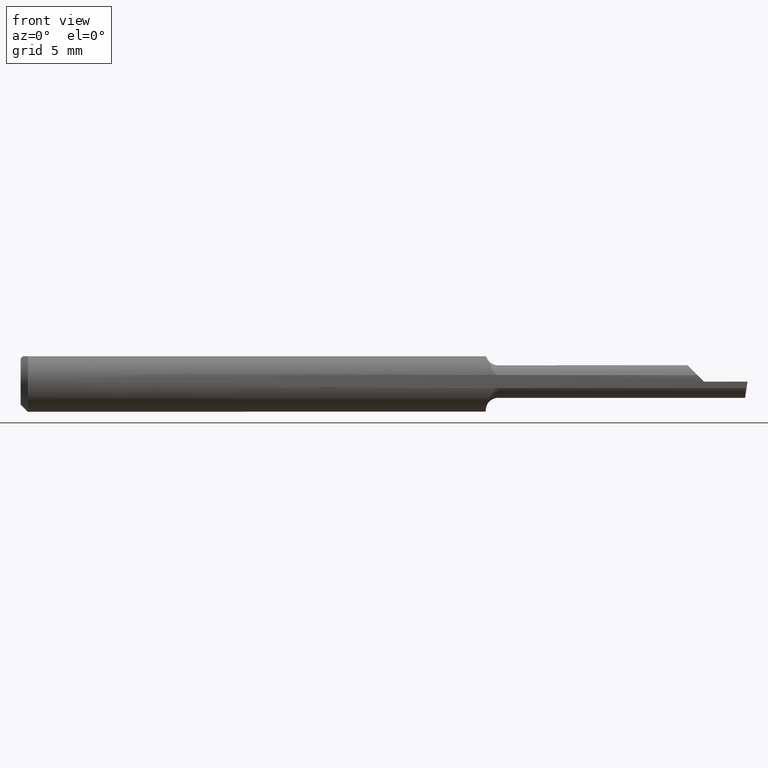
[diagram: clean part render]
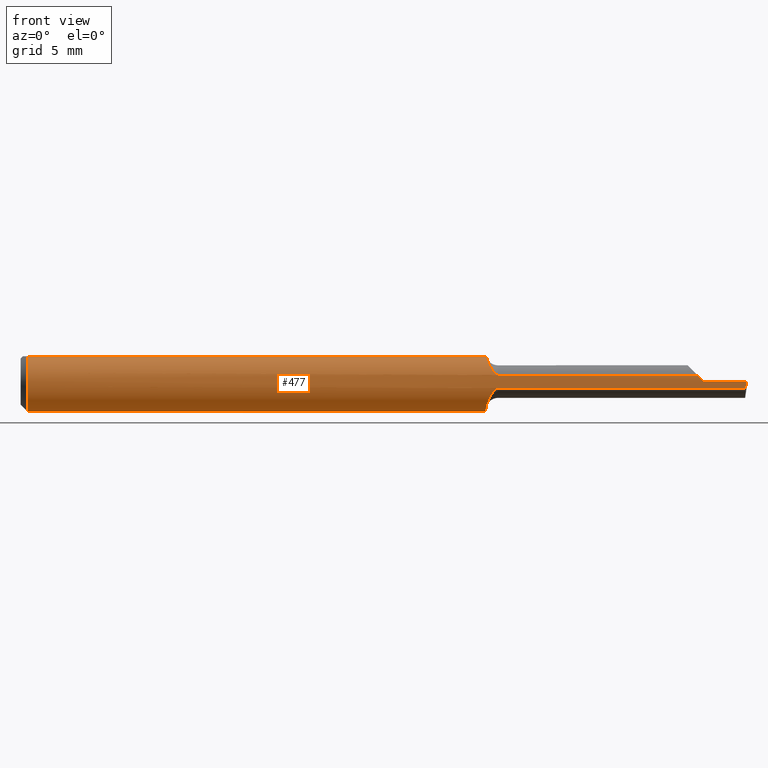
[diagram: same view with one face highlighted and labeled with its STEP entity id]
A machine part, front view. The second image highlights one B-rep face of the part: STEP entity #477.
In plain terms, the highlighted cylindrical surface (edge-blend (fillet) strip) has radius 1.5837 mm, axis along (-1, -0, -0).
Its self-contained STEP definition (entity closure, byte-faithful):
#2 = CARTESIAN_POINT ( 'NONE',  ( 0.9826699145969584048, -0.06082078945086091815, 0.01373977049058531900 ) ) ;
#6 = ORIENTED_EDGE ( 'NONE', *, *, #409, .F. ) ;
#10 = VECTOR ( 'NONE', #125, 39.37007874015748143 ) ;
#11 = EDGE_CURVE ( 'NONE', #474, #414, #535, .T. ) ;
#14 = ORIENTED_EDGE ( 'NONE', *, *, #515, .F. ) ;
#21 = AXIS2_PLACEMENT_3D ( 'NONE', #623, #573, #229 ) ;
#33 = CARTESIAN_POINT ( 'NONE',  ( 0.01500000000000000465, 0.0000000000000000000, 0.0000000000000000000 ) ) ;
#47 = CARTESIAN_POINT ( 'NONE',  ( 0.9600000000000001865, -0.02246166666666678594, -0.05816352835373341662 ) ) ;
#52 = CIRCLE ( 'NONE', #61, 0.06235000000000000264 ) ;
#61 = AXIS2_PLACEMENT_3D ( 'NONE', #340, #569, #232 ) ;
#65 = ORIENTED_EDGE ( 'NONE', *, *, #622, .F. ) ;
#71 = ORIENTED_EDGE ( 'NONE', *, *, #11, .F. ) ;
#75 = CARTESIAN_POINT ( 'NONE',  ( 0.0000000000000000000, 0.03386738844375223462, 0.05234999999999997988 ) ) ;
#76 =( BOUNDED_CURVE ( )  B_SPLINE_CURVE ( 3, ( #562, #464, #405, #182 ),
 .UNSPECIFIED., .F., .F. ) 
 B_SPLINE_CURVE_WITH_KNOTS ( ( 4, 4 ),
 ( 4.712388980384689674, 4.926973479604665584 ),
 .UNSPECIFIED. ) 
 CURVE ( )  GEOMETRIC_REPRESENTATION_ITEM ( )  RATIONAL_B_SPLINE_CURVE ( ( 1.000000000000000000, 0.9961664706887894960, 0.9961664706887894960, 1.000000000000000000 ) ) 
 REPRESENTATION_ITEM ( '' )  );
#78 = CARTESIAN_POINT ( 'NONE',  ( 1.497957498117606479, -0.06235000000000001652, 2.590631728435611737E-19 ) ) ;
#88 = CARTESIAN_POINT ( 'NONE',  ( 1.205000000000000071, -0.06092000000000005744, 0.01327690099383115746 ) ) ;
#102 = CYLINDRICAL_SURFACE ( 'NONE', #21, 0.06235000000000000264 ) ;
#105 = DIRECTION ( 'NONE',  ( -1.000000000000000000, -0.0000000000000000000, -0.0000000000000000000 ) ) ;
#106 = CARTESIAN_POINT ( 'NONE',  ( 0.9623556892620803715, -0.04203237437577739960, -0.04640179157007803812 ) ) ;
#107 = ORIENTED_EDGE ( 'NONE', *, *, #460, .T. ) ;
#111 = CARTESIAN_POINT ( 'NONE',  ( 0.9744486691799308931, -0.05829317251375062264, -0.02226264029831841185 ) ) ;
#124 = ORIENTED_EDGE ( 'NONE', *, *, #168, .F. ) ;
#125 = DIRECTION ( 'NONE',  ( 1.000000000000000000, 0.0000000000000000000, 0.0000000000000000000 ) ) ;
#128 = DIRECTION ( 'NONE',  ( -1.000000000000000000, -0.0000000000000000000, -0.0000000000000000000 ) ) ;
#133 = B_SPLINE_CURVE_WITH_KNOTS ( 'NONE', 3,
 ( #366, #438, #600, #259, #439, #441, #444, #408, #413, #416, #369, #2, #311, #400 ),
 .UNSPECIFIED., .F., .F.,
 ( 4, 2, 2, 2, 2, 2, 4 ),
 ( 3.657393739027581265E-07, 0.0003570510026825786539, 0.0007137362659912544925, 0.001070421529299930060, 0.001248764160954267790, 0.001337935476781436980, 0.001427106792608605736 ),
 .UNSPECIFIED. ) ;
#146 =( BOUNDED_CURVE ( )  B_SPLINE_CURVE ( 3, ( #174, #296, #399, #78 ),
 .UNSPECIFIED., .F., .T. ) 
 B_SPLINE_CURVE_WITH_KNOTS ( ( 4, 4 ),
 ( 1.146162383294266007, 1.360746882514242806 ),
 .UNSPECIFIED. ) 
 CURVE ( )  GEOMETRIC_REPRESENTATION_ITEM ( )  RATIONAL_B_SPLINE_CURVE ( ( 1.000000000000000000, 0.9961664706887894960, 0.9961664706887894960, 1.000000000000000000 ) ) 
 REPRESENTATION_ITEM ( '' )  );
#153 = CARTESIAN_POINT ( 'NONE',  ( 0.9788394046414949923, -0.06006884725234334921, -0.01674793665629171688 ) ) ;
#167 = VECTOR ( 'NONE', #105, 39.37007874015748143 ) ;
#168 = EDGE_CURVE ( 'NONE', #412, #601, #324, .T. ) ;
#174 = CARTESIAN_POINT ( 'NONE',  ( 1.496364186706980792, -0.06092000000000005744, -0.01327690099383115746 ) ) ;
#182 = CARTESIAN_POINT ( 'NONE',  ( 1.396723099006168756, -0.06092000000000005744, 0.01327690099383110368 ) ) ;
#189 = CARTESIAN_POINT ( 'NONE',  ( 0.9760504801086954396, -0.05911543623058087421, -0.01994584841871079733 ) ) ;
#194 = CARTESIAN_POINT ( 'NONE',  ( 0.9604591950614119744, -0.03294655339399241850, -0.05323881456264100559 ) ) ;
#217 = CARTESIAN_POINT ( 'NONE',  ( 0.9821601379188166225, -0.06077026469959424110, -0.01397522694752828185 ) ) ;
#218 = ORIENTED_EDGE ( 'NONE', *, *, #520, .T. ) ;
#221 = CARTESIAN_POINT ( 'NONE',  ( 0.9798286866658773020, -0.06034170405075480609, -0.01572293840682431956 ) ) ;
#223 = EDGE_CURVE ( 'NONE', #381, #380, #320, .T. ) ;
#226 = CARTESIAN_POINT ( 'NONE',  ( 0.9850000000000000977, -0.06092000000000009907, -0.01327690099383098052 ) ) ;
#229 = DIRECTION ( 'NONE',  ( 0.0000000000000000000, 0.0000000000000000000, 1.000000000000000000 ) ) ;
#230 = CARTESIAN_POINT ( 'NONE',  ( 0.9600000000000001865, -0.02246166666666678594, -0.05816352835373341662 ) ) ;
#232 = DIRECTION ( 'NONE',  ( 0.0000000000000000000, 1.000000000000000000, 0.0000000000000000000 ) ) ;
#235 = EDGE_CURVE ( 'NONE', #342, #412, #133, .T. ) ;
#241 = DIRECTION ( 'NONE',  ( 0.0000000000000000000, 0.0000000000000000000, 1.000000000000000000 ) ) ;
#246 = VERTEX_POINT ( 'NONE', #307 ) ;
#252 = CARTESIAN_POINT ( 'NONE',  ( 0.0000000000000000000, -0.03386738844375222768, 0.05234999999999997988 ) ) ;
#259 = CARTESIAN_POINT ( 'NONE',  ( 0.9646639545706103824, -0.04772651244230446260, 0.04037711979630429632 ) ) ;
#282 = CARTESIAN_POINT ( 'NONE',  ( 0.01500000000000185213, -0.03386738844380016850, 0.05235000000000000070 ) ) ;
#288 = CIRCLE ( 'NONE', #302, 0.06235000000000000264 ) ;
#296 = CARTESIAN_POINT ( 'NONE',  ( 1.496875516891821967, -0.06187149898566947359, -0.008911023878839218967 ) ) ;
#299 = CARTESIAN_POINT ( 'NONE',  ( 0.9850000000000000977, -0.06092000000000009907, -0.01327690099383098052 ) ) ;
#302 = AXIS2_PLACEMENT_3D ( 'NONE', #375, #371, #361 ) ;
#307 = CARTESIAN_POINT ( 'NONE',  ( 0.01500000000000000465, 0.03386738844375223462, 0.05234999999999997988 ) ) ;
#311 = CARTESIAN_POINT ( 'NONE',  ( 0.9838008948468816017, -0.06092000000060113218, 0.01327690099107449277 ) ) ;
#319 = ORIENTED_EDGE ( 'NONE', *, *, #486, .T. ) ;
#320 = LINE ( 'NONE', #360, #167 ) ;
#324 = LINE ( 'NONE', #88, #582 ) ;
#327 = VECTOR ( 'NONE', #479, 39.37007874015748143 ) ;
#329 = EDGE_CURVE ( 'NONE', #342, #404, #443, .T. ) ;
#338 = FACE_OUTER_BOUND ( 'NONE', #503, .T. ) ;
#340 = CARTESIAN_POINT ( 'NONE',  ( 0.9600000000000001865, 0.0000000000000000000, 0.0000000000000000000 ) ) ;
#342 = VERTEX_POINT ( 'NONE', #632 ) ;
#343 = CARTESIAN_POINT ( 'NONE',  ( 0.01500000000000000465, 0.0000000000000000000, -0.06235000000000000264 ) ) ;
#348 = LINE ( 'NONE', #75, #10 ) ;
#349 = CARTESIAN_POINT ( 'NONE',  ( 0.9700645789173278910, -0.05535262368619134343, -0.02912723828542086030 ) ) ;
#360 = CARTESIAN_POINT ( 'NONE',  ( 2.249639673992780117E-32, -0.06234999999999999570, 1.836970198721026976E-16 ) ) ;
#361 = DIRECTION ( 'NONE',  ( 0.0000000000000000000, 0.0000000000000000000, 1.000000000000000000 ) ) ;
#366 = CARTESIAN_POINT ( 'NONE',  ( 0.9607701187518842278, -0.03386738844373782947, 0.05235000000000000070 ) ) ;
#369 = CARTESIAN_POINT ( 'NONE',  ( 0.9806804763874463760, -0.06051938329563268104, 0.01501179429902396202 ) ) ;
#371 = DIRECTION ( 'NONE',  ( -1.000000000000000000, -0.0000000000000000000, -0.0000000000000000000 ) ) ;
#375 = CARTESIAN_POINT ( 'NONE',  ( 0.01500000000000000465, 0.0000000000000000000, 0.0000000000000000000 ) ) ;
#380 = VERTEX_POINT ( 'NONE', #579 ) ;
#381 = VERTEX_POINT ( 'NONE', #456 ) ;
#382 = CARTESIAN_POINT ( 'NONE',  ( 0.9850000000000000977, -0.06092000000000009213, 0.01327690099383100134 ) ) ;
#399 = CARTESIAN_POINT ( 'NONE',  ( 1.497408664532471789, -0.06235000000000000958, -0.004468359128689263979 ) ) ;
#400 = CARTESIAN_POINT ( 'NONE',  ( 0.9850000000000000977, -0.06092000000000009213, 0.01327690099383100134 ) ) ;
#404 = VERTEX_POINT ( 'NONE', #282 ) ;
#405 = CARTESIAN_POINT ( 'NONE',  ( 1.401088976121160901, -0.06187149898566947359, 0.008911023878839133966 ) ) ;
#406 = CARTESIAN_POINT ( 'NONE',  ( 0.9676519216434287252, -0.05268295501176721574, -0.03378546887498616591 ) ) ;
#408 = CARTESIAN_POINT ( 'NONE',  ( 0.9759830730812821820, -0.05904190537839698605, 0.02013745427411963926 ) ) ;
#409 = EDGE_CURVE ( 'NONE', #527, #404, #565, .T. ) ;
#412 = VERTEX_POINT ( 'NONE', #382 ) ;
#413 = CARTESIAN_POINT ( 'NONE',  ( 0.9773685403041281194, -0.05962881332384156047, 0.01830066387367073819 ) ) ;
#414 = VERTEX_POINT ( 'NONE', #226 ) ;
#416 = CARTESIAN_POINT ( 'NONE',  ( 0.9798073192436241863, -0.06032049651225029896, 0.01580211994234494849 ) ) ;
#424 = VERTEX_POINT ( 'NONE', #230 ) ;
#438 = CARTESIAN_POINT ( 'NONE',  ( 0.9613448335523233634, -0.03782458604559964244, 0.04978992457821582868 ) ) ;
#439 = CARTESIAN_POINT ( 'NONE',  ( 0.9662216145595606820, -0.05050373301684461802, 0.03681593035639607603 ) ) ;
#441 = CARTESIAN_POINT ( 'NONE',  ( 0.9699328214255320546, -0.05508260153816097598, 0.02952874505345451719 ) ) ;
#443 = LINE ( 'NONE', #252, #327 ) ;
#444 = CARTESIAN_POINT ( 'NONE',  ( 0.9721022567388295510, -0.05694092632992447250, 0.02571027090688607700 ) ) ;
#452 = CARTESIAN_POINT ( 'NONE',  ( 0.9599999999999998535, -0.02789725500421543977, -0.05606440581369922377 ) ) ;
#456 = CARTESIAN_POINT ( 'NONE',  ( 1.497957498117606479, -0.06235000000000001652, 2.590631728435611737E-19 ) ) ;
#460 = EDGE_CURVE ( 'NONE', #246, #540, #348, .T. ) ;
#464 = CARTESIAN_POINT ( 'NONE',  ( 1.405531640871310994, -0.06235000000000000958, 0.004468359128689195457 ) ) ;
#474 = VERTEX_POINT ( 'NONE', #558 ) ;
#477 = ADVANCED_FACE ( 'NONE', ( #338 ), #102, .T. ) ;
#479 = DIRECTION ( 'NONE',  ( -1.000000000000000000, -0.0000000000000000000, -0.0000000000000000000 ) ) ;
#480 = ORIENTED_EDGE ( 'NONE', *, *, #638, .F. ) ;
#485 = CARTESIAN_POINT ( 'NONE',  ( 0.9638064866373902140, -0.04605636197897009648, -0.04237644601823780527 ) ) ;
#486 = EDGE_CURVE ( 'NONE', #474, #381, #146, .T. ) ;
#494 = AXIS2_PLACEMENT_3D ( 'NONE', #33, #128, #241 ) ;
#498 = VECTOR ( 'NONE', #514, 39.37007874015748143 ) ;
#503 = EDGE_LOOP ( 'NONE', ( #71, #319, #510, #218, #124, #561, #541, #6, #480, #107, #14, #65 ) ) ;
#505 = CARTESIAN_POINT ( 'NONE',  ( 0.9600000000000001865, 0.03386738844375224156, 0.05235000000000000070 ) ) ;
#510 = ORIENTED_EDGE ( 'NONE', *, *, #223, .T. ) ;
#514 = DIRECTION ( 'NONE',  ( -1.000000000000000000, 2.845674993400274571E-18, -0.0000000000000000000 ) ) ;
#515 = EDGE_CURVE ( 'NONE', #424, #540, #52, .T. ) ;
#518 = CARTESIAN_POINT ( 'NONE',  ( 1.205000000000000071, -0.06092000000000005744, -0.01327690099383115746 ) ) ;
#520 = EDGE_CURVE ( 'NONE', #380, #601, #76, .T. ) ;
#527 = VERTEX_POINT ( 'NONE', #343 ) ;
#535 = LINE ( 'NONE', #518, #498 ) ;
#540 = VERTEX_POINT ( 'NONE', #505 ) ;
#541 = ORIENTED_EDGE ( 'NONE', *, *, #329, .T. ) ;
#555 = CARTESIAN_POINT ( 'NONE',  ( 0.9835150313864867710, -0.06092000000000008519, -0.01327690099383098919 ) ) ;
#558 = CARTESIAN_POINT ( 'NONE',  ( 1.496364186706980792, -0.06092000000000005744, -0.01327690099383115746 ) ) ;
#561 = ORIENTED_EDGE ( 'NONE', *, *, #235, .F. ) ;
#562 = CARTESIAN_POINT ( 'NONE',  ( 1.409999999999999920, -0.06235000000000005121, 1.102182119232617911E-17 ) ) ;
#565 = CIRCLE ( 'NONE', #494, 0.06235000000000000264 ) ;
#569 = DIRECTION ( 'NONE',  ( 1.000000000000000000, -2.845674993400274571E-18, 0.0000000000000000000 ) ) ;
#573 = DIRECTION ( 'NONE',  ( -1.000000000000000000, -0.0000000000000000000, -0.0000000000000000000 ) ) ;
#579 = CARTESIAN_POINT ( 'NONE',  ( 1.409999999999999920, -0.06235000000000005121, 1.102182119232617911E-17 ) ) ;
#582 = VECTOR ( 'NONE', #592, 39.37007874015748143 ) ;
#592 = DIRECTION ( 'NONE',  ( 1.000000000000000000, -2.845674993400274571E-18, 0.0000000000000000000 ) ) ;
#600 = CARTESIAN_POINT ( 'NONE',  ( 0.9622285766993532441, -0.04137438227418510639, 0.04686461655001718934 ) ) ;
#601 = VERTEX_POINT ( 'NONE', #615 ) ;
#615 = CARTESIAN_POINT ( 'NONE',  ( 1.396723099006168756, -0.06092000000000005744, 0.01327690099383110368 ) ) ;
#622 = EDGE_CURVE ( 'NONE', #414, #424, #640, .T. ) ;
#623 = CARTESIAN_POINT ( 'NONE',  ( 0.0000000000000000000, 0.0000000000000000000, 0.0000000000000000000 ) ) ;
#632 = CARTESIAN_POINT ( 'NONE',  ( 0.9607701187518842278, -0.03386738844373782947, 0.05235000000000000070 ) ) ;
#638 = EDGE_CURVE ( 'NONE', #246, #527, #288, .T. ) ;
#640 = B_SPLINE_CURVE_WITH_KNOTS ( 'NONE', 3,
 ( #299, #555, #217, #221, #153, #189, #111, #349, #406, #485, #106, #194, #452, #47 ),
 .UNSPECIFIED., .F., .F.,
 ( 4, 2, 2, 2, 2, 2, 4 ),
 ( 1.965909345844058180E-07, 0.0001114396223726252396, 0.0002226826538106660685, 0.0004451687166867410042, 0.0008901408424388908757, 0.001335112968191041073, 0.001780085093943191378 ),
 .UNSPECIFIED. ) ;